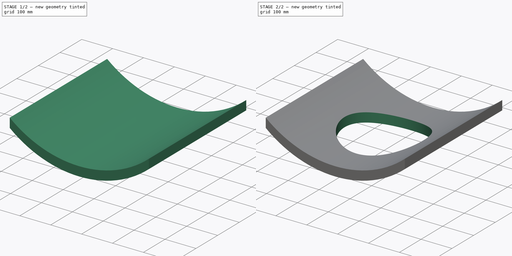
[diagram: build sequence overview — one tinted view per stage of 2, left to right]
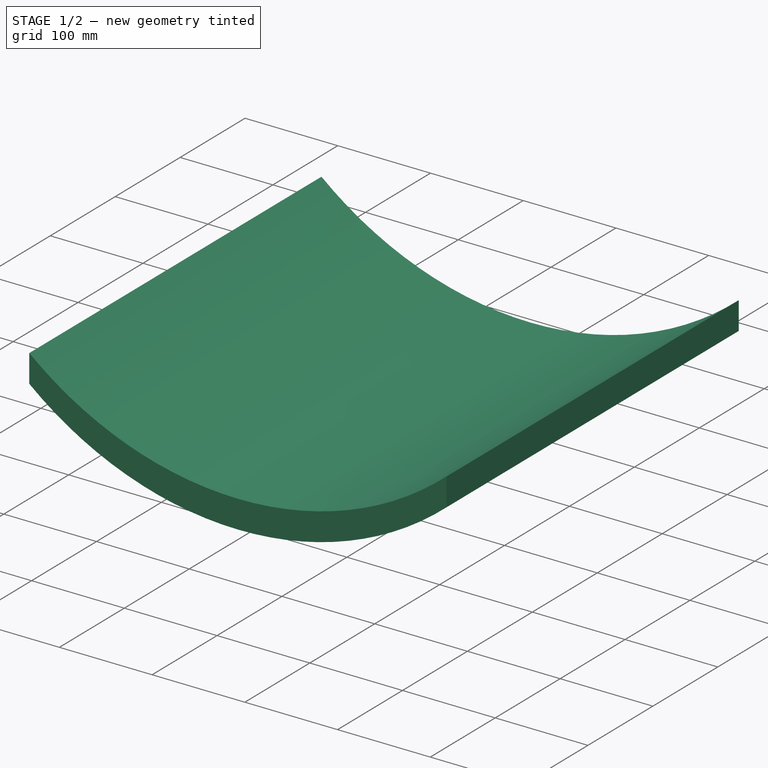
[diagram: stage 1 of 2 — iso view after this stage's code; geometry added in this stage tinted green]
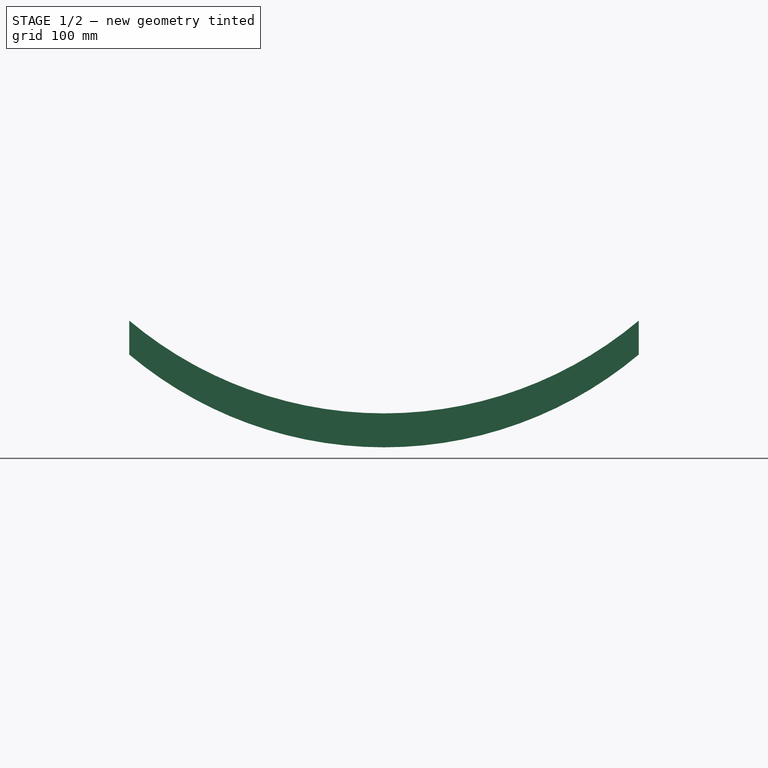
[diagram: stage 1 of 2 — front view after this stage's code; geometry added in this stage tinted green]
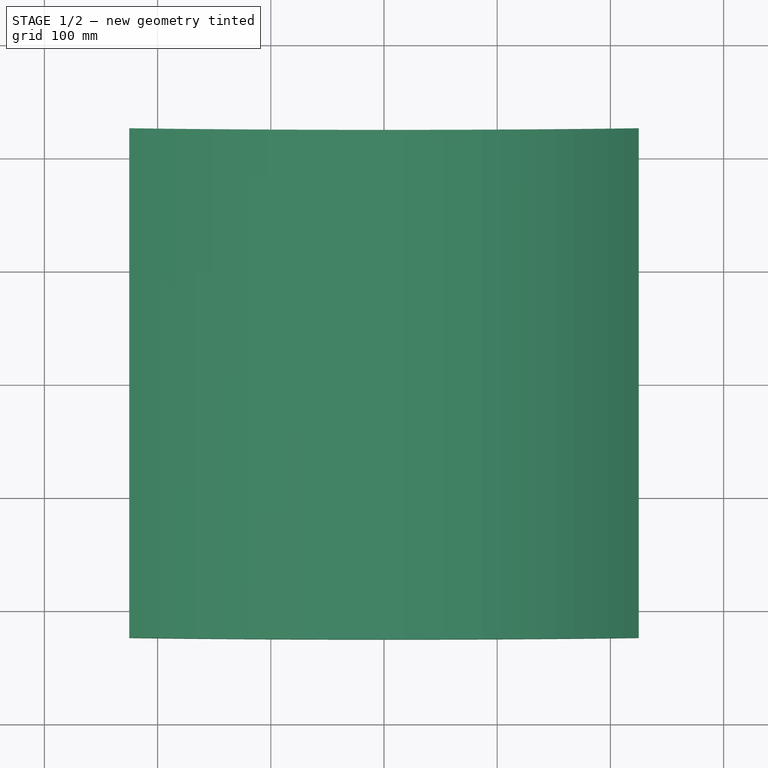
[diagram: stage 1 of 2 — top view after this stage's code; geometry added in this stage tinted green]
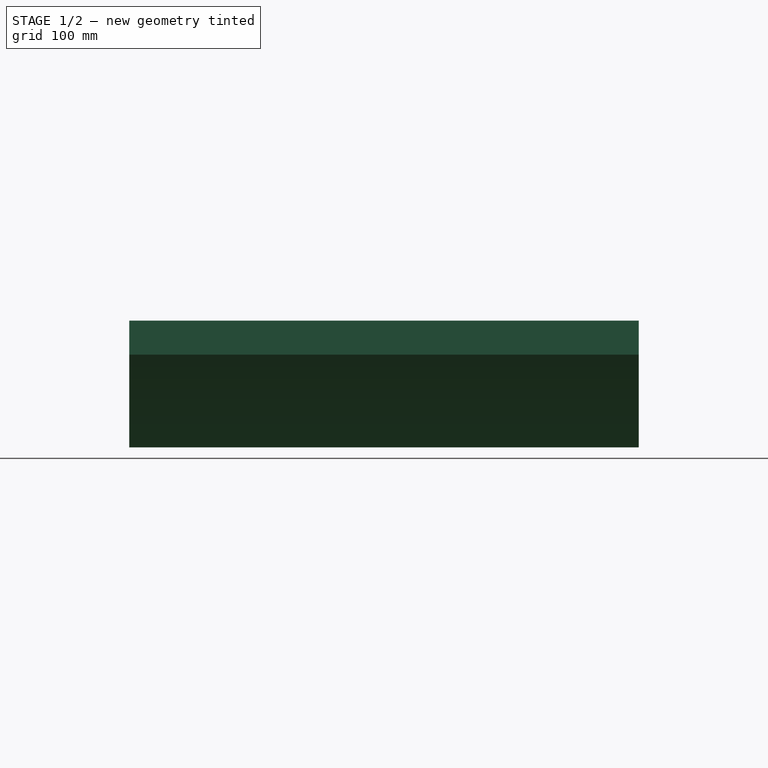
[diagram: stage 1 of 2 — right view after this stage's code; geometry added in this stage tinted green]
FCSTD DOCUMENT  (FreeCAD 0.19R24291 (Git))
Label: fus_6ch
License: All rights reserved
LicenseURL: http://en.wikipedia.org/wiki/All_rights_reserved
objects: Sketcher::SketchObject×2, App::Part×1, PartDesign::Pad×1, PartDesign::Pocket×1, PartDesign::Body×1
note: 7 computed .brp shape members not serialized (recipe doc carries the construction recipe); baked Part::Feature solids carry a one-line shape summary decoded from their .brp

FEATURE [App::Part] Part
  Origin = -> Origin
FEATURE [Sketcher::SketchObject] Sketch
  FullyConstrained = true
  MapMode = 5
  Placement = pos=(0,0,0) rot=(1,0,0;1.5708rad)
  Support = -> [XZ_Plane001]
  sketch-geometry (4):
    g0: ArcOfCircle CenterX=-2.97e-14 CenterY=380 CenterZ=0 NormalX=0 NormalY=0 NormalZ=1 AngleXU=0 Radius=350 StartAngle=4.01417 EndAngle=5.41061
    g1: ArcOfCircle CenterX=-3.69e-14 CenterY=350 CenterZ=0 NormalX=0 NormalY=0 NormalZ=1 AngleXU=0 Radius=350 StartAngle=4.01417 EndAngle=5.41061
    g2: LineSegment StartX=225 StartY=111.905 StartZ=0 EndX=225 EndY=81.9049 EndZ=0
    g3: LineSegment StartX=-225 StartY=111.905 StartZ=0 EndX=-225 EndY=81.9049 EndZ=0
  constraints (12):
    c: DistanceY(g1,g0) = 30
    c: DistanceY(g-1,g1) = 350
    c: Symmetric(g1,g1,g-2)
    c: Symmetric(g0,g0,g-2)
    c: Coincident(g2,g0)
    c: Coincident(g2,g1)
    c: Coincident(g3,g0)
    c: Coincident(g3,g1)
    c: DistanceY(g2,g2) = 30
    c: Vertical(g2)
    c: DistanceX(g0,g0) = 450
    c: Radius(g0) = 350
FEATURE [PartDesign::Pad] Pad
  Direction = (1,1,1)
  Length = 450
  Length2 = 100
  Midplane = true
  Placement = pos=(0,0,0) rot=(1,0,0;1.5708rad)
  Profile = -> Sketch
  Refine = true
  Type = 0
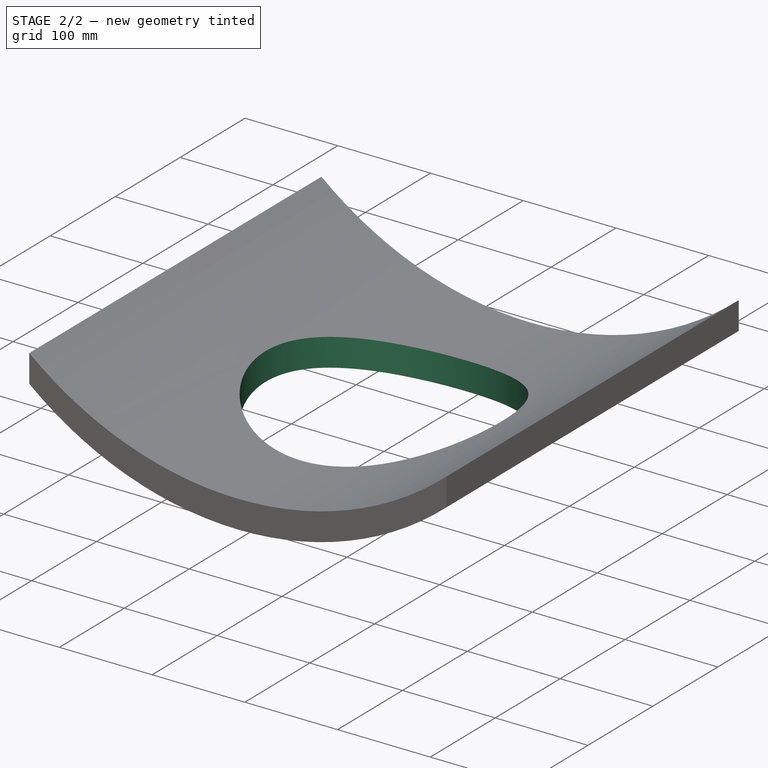
[diagram: stage 2 of 2 — iso view after this stage's code; geometry added in this stage tinted green]
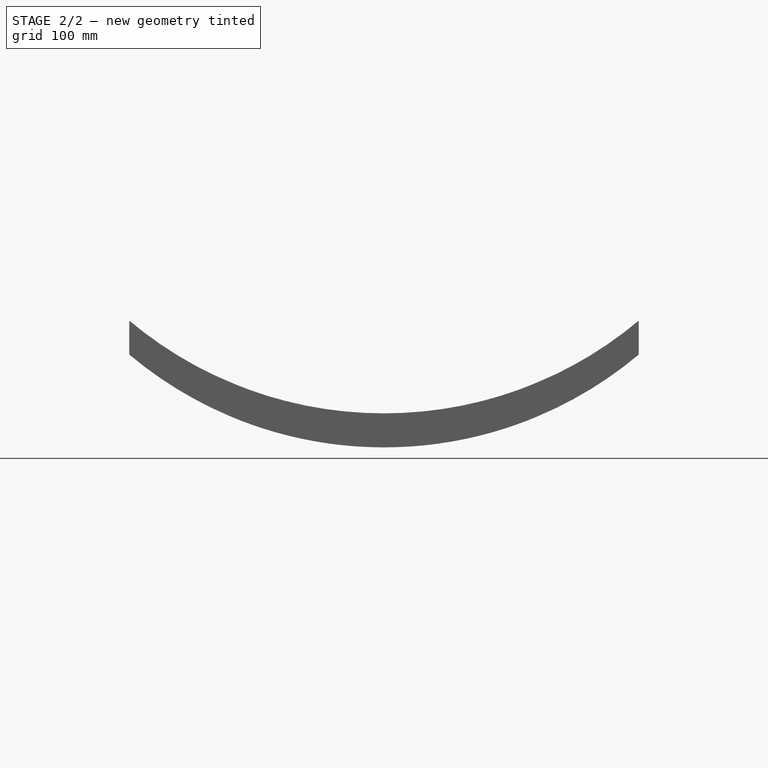
[diagram: stage 2 of 2 — front view after this stage's code; geometry added in this stage tinted green]
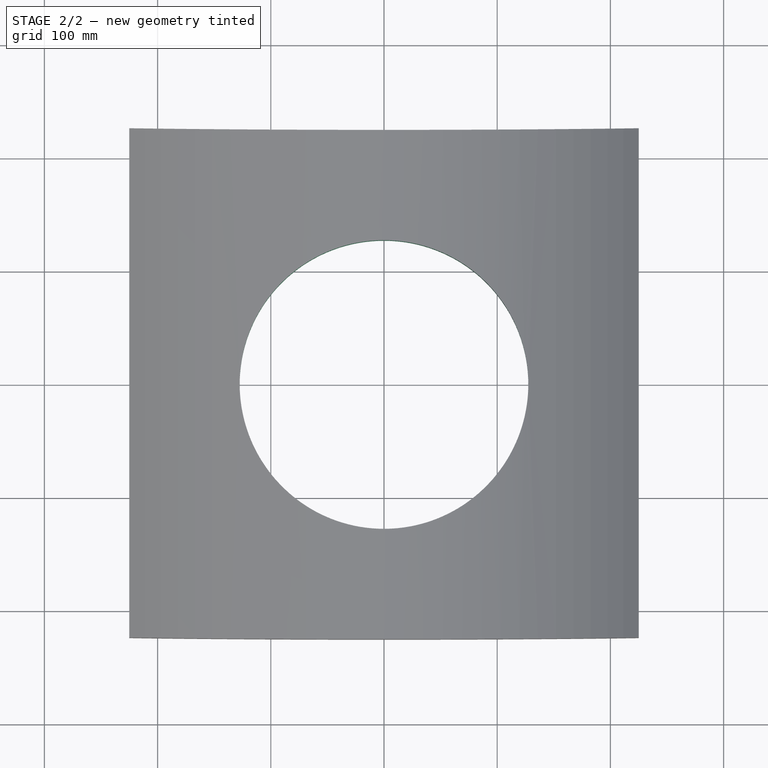
[diagram: stage 2 of 2 — top view after this stage's code; geometry added in this stage tinted green]
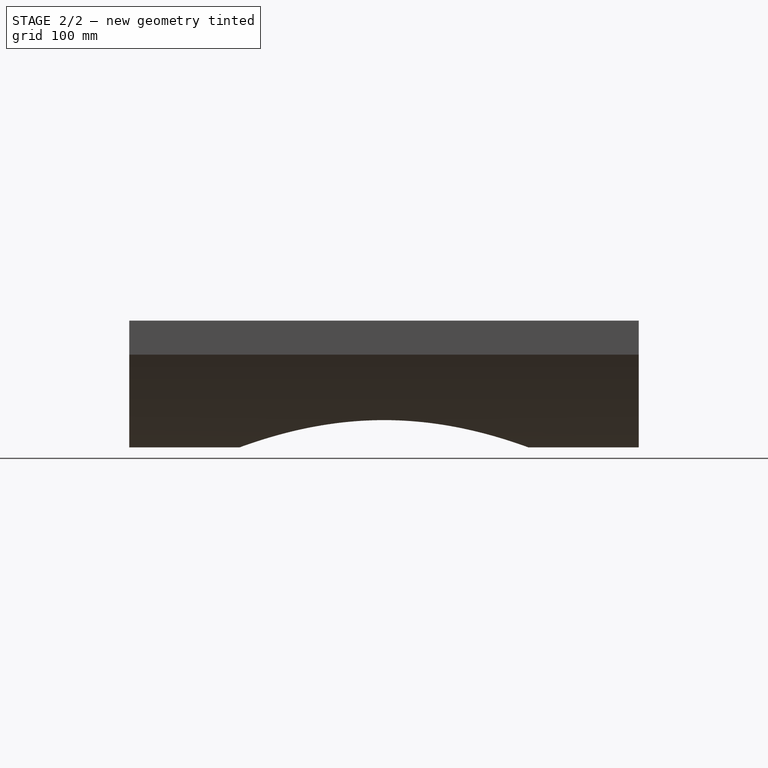
[diagram: stage 2 of 2 — right view after this stage's code; geometry added in this stage tinted green]
FEATURE [Sketcher::SketchObject] Sketch001
  FullyConstrained = true
  MapMode = 5
  Support = -> [XY_Plane001]
  sketch-geometry (1):
    g0: Circle CenterX=0 CenterY=0 CenterZ=0 NormalX=0 NormalY=0 NormalZ=1 AngleXU=0 Radius=127.5
  constraints (2):
    c: Coincident(g0,g-1)
    c: Radius(g0) = 127.5
FEATURE [PartDesign::Pocket] Pocket
  BaseFeature = -> Pad
  Length = 5
  Length2 = 100
  Placement = pos=(0,0,0) rot=(1,0,0;1.5708rad)
  Profile = -> Sketch001
  Refine = true
  Reversed = true
  Type = 1
FEATURE [PartDesign::Body] Body
  Group = -> [Sketch,Pad,Sketch001,Pocket]
  Origin = -> Origin001
  Tip = -> Pocket
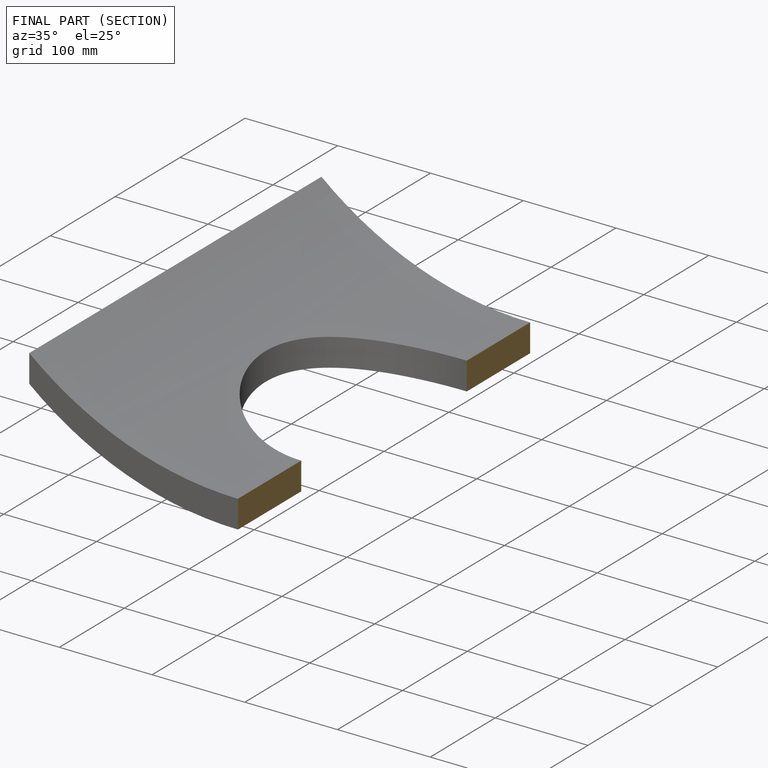
[diagram: finished part — half-section view (interior)]
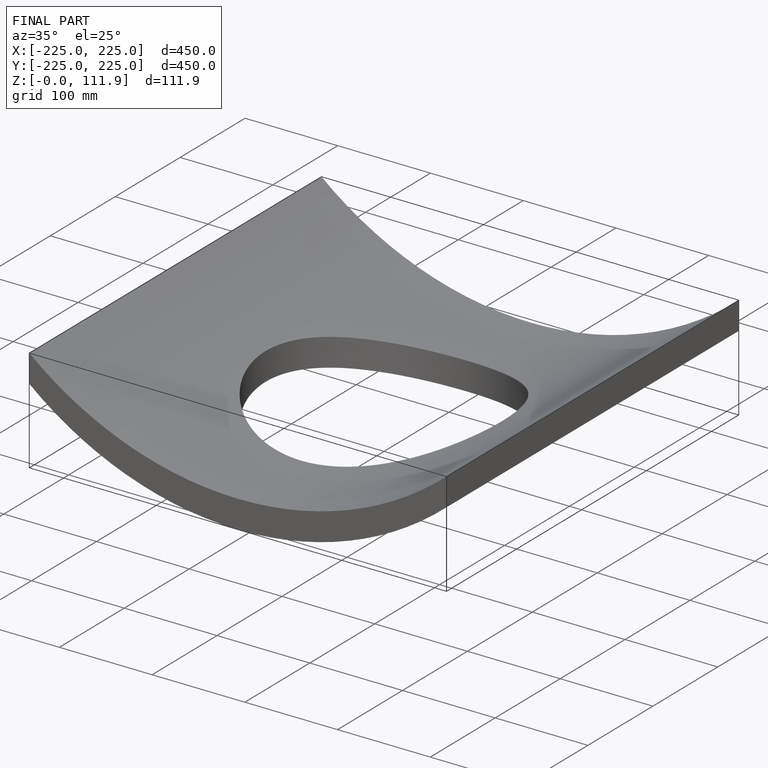
[diagram: finished part — iso view with bounding-box wireframe]
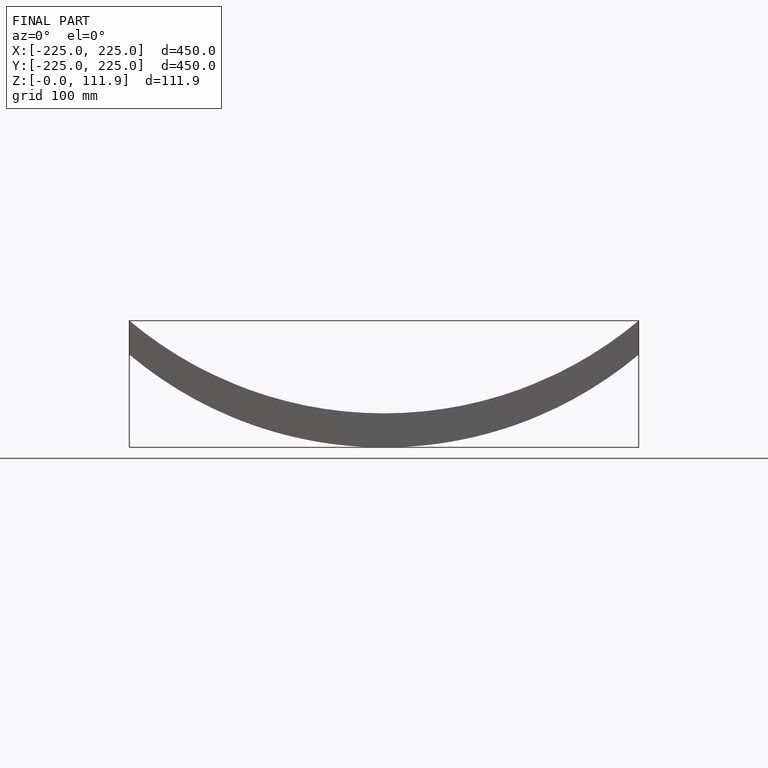
[diagram: finished part — front view with bounding-box wireframe]
